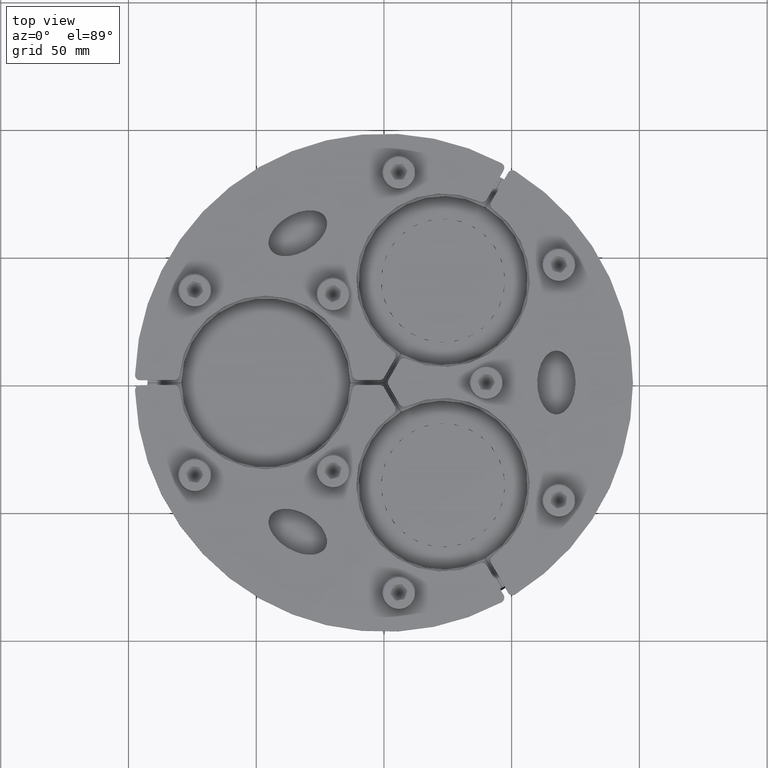
[diagram: clean part render]
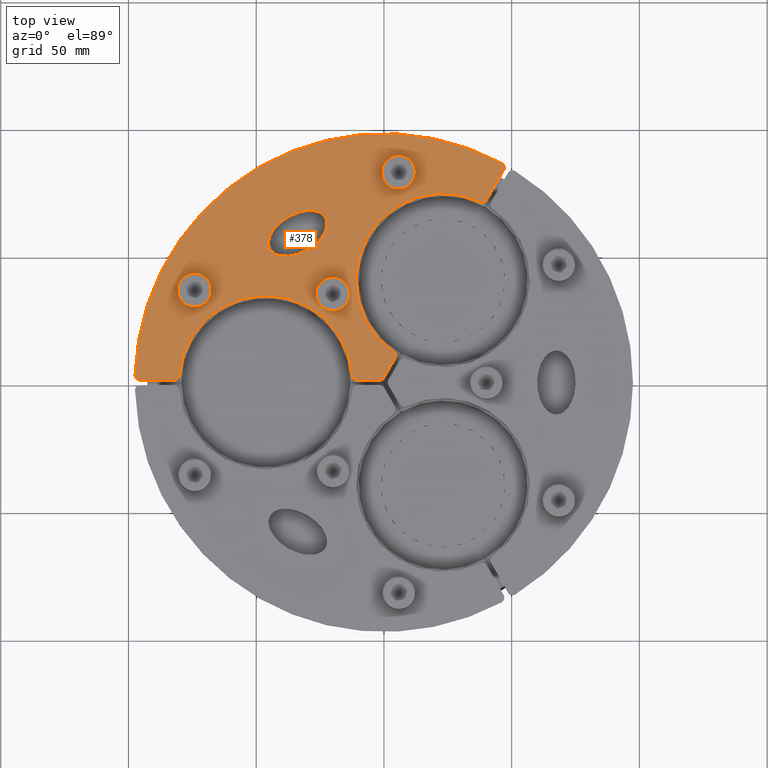
[diagram: same view with one face highlighted and labeled with its STEP entity id]
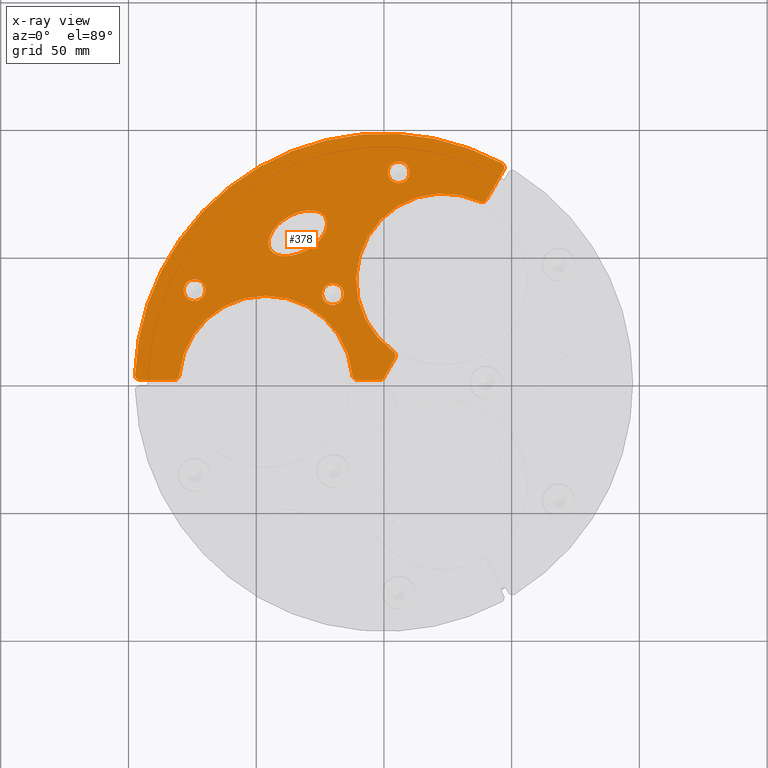
[diagram: x-ray of the same camera — body ghosted, the highlighted face saturated]
A machine part, top view. The second image highlights one B-rep face of the part: STEP entity #378.
The next image is the same camera in x-ray: the body ghosted, the highlighted face saturated — about 0% of this face is hidden behind the body in this view.
In plain terms, the highlighted planar face has unit normal (0, 0, -1).
Its self-contained STEP definition (entity closure, byte-faithful):
#133=CARTESIAN_POINT('',(-22.924682452694558,64.706714755449624,0.0));
#134=VERTEX_POINT('',#133);
#135=CARTESIAN_POINT('',(-33.750000000000028,58.45671475544961,0.0));
#136=DIRECTION('',(0.0,0.0,1.0));
#137=DIRECTION('',(-0.866025403784438,-0.500000000000001,0.0));
#138=AXIS2_PLACEMENT_3D('',#135,#136,#137);
#139=ELLIPSE('',#138,12.499999999999995,7.499999999999998);
#140=EDGE_CURVE('',#134,#134,#139,.T.);
#172=CARTESIAN_POINT('',(46.860408571529447,83.164608509325262,0.0));
#173=VERTEX_POINT('',#172);
#180=CARTESIAN_POINT('',(46.073454261635156,85.927218111614764,0.0));
#181=VERTEX_POINT('',#180);
#182=CARTESIAN_POINT('',(45.12835776396058,84.164608509325234,0.0));
#183=DIRECTION('',(0.0,0.0,1.0));
#184=DIRECTION('',(0.96174091848567,0.273960591527944,0.0));
#185=AXIS2_PLACEMENT_3D('',#182,#183,#184);
#186=CIRCLE('',#185,2.0);
#187=EDGE_CURVE('',#173,#181,#186,.T.);
#204=CARTESIAN_POINT('',(-97.451880892002279,3.062827225130911,0.0));
#205=VERTEX_POINT('',#204);
#206=CARTESIAN_POINT('',(0.0,0.0,0.0));
#207=DIRECTION('',(0.0,0.0,1.0));
#208=DIRECTION('',(0.491091388986829,0.871108057397581,0.0));
#209=AXIS2_PLACEMENT_3D('',#206,#207,#208);
#210=CIRCLE('',#209,97.5);
#211=EDGE_CURVE('',#181,#205,#210,.T.);
#231=CARTESIAN_POINT('',(-26.080791718767877,45.173256358527553,0.0));
#232=DIRECTION('',(0.0,0.0,1.0));
#233=DIRECTION('',(1.0,0.0,0.0));
#234=AXIS2_PLACEMENT_3D('',#231,#232,#233);
#235=PLANE('',#234);
#236=ORIENTED_EDGE('',*,*,#187,.F.);
#237=CARTESIAN_POINT('',(40.19636571086761,71.622147690842283,0.0));
#238=VERTEX_POINT('',#237);
#239=CARTESIAN_POINT('',(40.196365710867617,71.622147690842297,0.0));
#240=DIRECTION('',(0.499999999999999,0.866025403784439,0.0));
#241=VECTOR('',#240,13.328085721323674);
#242=LINE('',#239,#241);
#243=EDGE_CURVE('',#238,#173,#242,.T.);
#244=ORIENTED_EDGE('',*,*,#243,.F.);
#245=CARTESIAN_POINT('',(37.612130742004354,70.812788092741613,0.0));
#246=VERTEX_POINT('',#245);
#247=CARTESIAN_POINT('',(38.464314903298735,72.622147690842283,0.0));
#248=DIRECTION('',(0.0,0.0,1.0));
#249=DIRECTION('',(0.298875839005932,-0.954292006074923,0.0));
#250=AXIS2_PLACEMENT_3D('',#247,#248,#249);
#251=CIRCLE('',#250,2.0);
#252=EDGE_CURVE('',#246,#238,#251,.T.);
#253=ORIENTED_EDGE('',*,*,#252,.F.);
#254=CARTESIAN_POINT('',(3.730391969883773,12.127895090652308,0.0));
#255=VERTEX_POINT('',#254);
#256=CARTESIAN_POINT('',(23.124999999999972,40.0536749250303,0.0));
#257=DIRECTION('',(0.0,0.0,1.0));
#258=DIRECTION('',(-1.0,0.0,0.0));
#259=AXIS2_PLACEMENT_3D('',#256,#257,#258);
#260=CIRCLE('',#259,34.0);
#261=EDGE_CURVE('',#246,#255,#260,.T.);
#262=ORIENTED_EDGE('',*,*,#261,.T.);
#263=CARTESIAN_POINT('',(4.321583481563457,9.485202159218316,0.0));
#264=VERTEX_POINT('',#263);
#265=CARTESIAN_POINT('',(2.589532673994586,10.485202159218311,0.0));
#266=DIRECTION('',(0.0,0.0,1.0));
#267=DIRECTION('',(0.975879039392263,0.218311933880935,0.0));
#268=AXIS2_PLACEMENT_3D('',#265,#266,#267);
#269=CIRCLE('',#268,2.0);
#270=EDGE_CURVE('',#264,#255,#269,.T.);
#271=ORIENTED_EDGE('',*,*,#270,.F.);
#272=CARTESIAN_POINT('',(1.013079E-014,2.000000000000013,0.0));
#273=VERTEX_POINT('',#272);
#274=CARTESIAN_POINT('',(1.021405E-014,2.000000000000013,0.0));
#275=DIRECTION('',(0.499999999999999,0.866025403784439,0.0));
#276=VECTOR('',#275,8.643166963126905);
#277=LINE('',#274,#276);
#278=EDGE_CURVE('',#273,#264,#277,.T.);
#279=ORIENTED_EDGE('',*,*,#278,.F.);
#280=CARTESIAN_POINT('',(-1.732050807568868,1.0,0.0));
#281=VERTEX_POINT('',#280);
#282=CARTESIAN_POINT('',(-1.732050807568859,3.000000000000007,0.0));
#283=DIRECTION('',(0.0,0.0,1.0));
#284=DIRECTION('',(0.499999999999999,-0.86602540378444,0.0));
#285=AXIS2_PLACEMENT_3D('',#282,#283,#284);
#286=CIRCLE('',#285,2.0);
#287=EDGE_CURVE('',#281,#273,#286,.T.);
#288=ORIENTED_EDGE('',*,*,#287,.F.);
#289=CARTESIAN_POINT('',(-10.375217770695802,1.0,0.0));
#290=VERTEX_POINT('',#289);
#291=CARTESIAN_POINT('',(-10.375217770695798,1.0,0.0));
#292=DIRECTION('',(1.0,0.0,0.0));
#293=VECTOR('',#292,8.64316696312693);
#294=LINE('',#291,#293);
#295=EDGE_CURVE('',#290,#281,#294,.T.);
#296=ORIENTED_EDGE('',*,*,#295,.F.);
#297=CARTESIAN_POINT('',(-12.368261227879366,2.833333333333339,0.0));
#298=VERTEX_POINT('',#297);
#299=CARTESIAN_POINT('',(-10.375217770695802,3.000000000000005,0.0));
#300=DIRECTION('',(0.0,0.0,1.0));
#301=DIRECTION('',(-0.677003200386329,-0.735980072193988,0.0));
#302=AXIS2_PLACEMENT_3D('',#299,#300,#301);
#303=CIRCLE('',#302,2.0);
#304=EDGE_CURVE('',#298,#290,#303,.T.);
#305=ORIENTED_EDGE('',*,*,#304,.F.);
#306=CARTESIAN_POINT('',(-80.131738772120627,2.833333333333333,0.0));
#307=VERTEX_POINT('',#306);
#308=CARTESIAN_POINT('',(-46.25,-1.387779E-016,0.0));
#309=DIRECTION('',(0.0,0.0,1.0));
#310=DIRECTION('',(-1.0,0.0,0.0));
#311=AXIS2_PLACEMENT_3D('',#308,#309,#310);
#312=CIRCLE('',#311,34.0);
#313=EDGE_CURVE('',#298,#307,#312,.T.);
#314=ORIENTED_EDGE('',*,*,#313,.T.);
#315=CARTESIAN_POINT('',(-82.124782229304202,1.0,0.0));
#316=VERTEX_POINT('',#315);
#317=CARTESIAN_POINT('',(-82.124782229304202,3.0,0.0));
#318=DIRECTION('',(0.0,0.0,1.0));
#319=DIRECTION('',(0.67700320038633,-0.735980072193987,0.0));
#320=AXIS2_PLACEMENT_3D('',#317,#318,#319);
#321=CIRCLE('',#320,2.0);
#322=EDGE_CURVE('',#316,#307,#321,.T.);
#323=ORIENTED_EDGE('',*,*,#322,.F.);
#324=CARTESIAN_POINT('',(-95.452867950627876,1.0,0.0));
#325=VERTEX_POINT('',#324);
#326=CARTESIAN_POINT('',(-95.452867950627876,1.0,0.0));
#327=DIRECTION('',(1.0,0.0,0.0));
#328=VECTOR('',#327,13.328085721323674);
#329=LINE('',#326,#328);
#330=EDGE_CURVE('',#325,#316,#329,.T.);
#331=ORIENTED_EDGE('',*,*,#330,.F.);
#332=CARTESIAN_POINT('',(-95.452867950627876,3.00000000000002,0.0));
#333=DIRECTION('',(0.0,0.0,1.0));
#334=DIRECTION('',(-0.71812729114184,-0.695911771503603,0.0));
#335=AXIS2_PLACEMENT_3D('',#332,#333,#334);
#336=CIRCLE('',#335,2.0);
#337=EDGE_CURVE('',#205,#325,#336,.T.);
#338=ORIENTED_EDGE('',*,*,#337,.F.);
#339=ORIENTED_EDGE('',*,*,#211,.F.);
#340=EDGE_LOOP('',(#236,#244,#253,#262,#271,#279,#288,#296,#305,#314,#323,#331,#338,#339));
#341=FACE_OUTER_BOUND('',#340,.T.);
#342=ORIENTED_EDGE('',*,*,#140,.T.);
#343=EDGE_LOOP('',(#342));
#344=FACE_BOUND('',#343,.T.);
#345=CARTESIAN_POINT('',(-69.900508819681264,36.165619610098879,0.0));
#346=VERTEX_POINT('',#345);
#347=CARTESIAN_POINT('',(-74.150508819681264,36.165619610098879,0.0));
#348=DIRECTION('',(0.0,0.0,1.0));
#349=DIRECTION('',(-1.0,0.0,0.0));
#350=AXIS2_PLACEMENT_3D('',#347,#348,#349);
#351=CIRCLE('',#350,4.250000000000004);
#352=EDGE_CURVE('',#346,#346,#351,.T.);
#353=ORIENTED_EDGE('',*,*,#352,.T.);
#354=EDGE_LOOP('',(#353));
#355=FACE_BOUND('',#354,.T.);
#356=CARTESIAN_POINT('',(-15.750000000000012,34.641016151377542,0.0));
#357=VERTEX_POINT('',#356);
#358=CARTESIAN_POINT('',(-20.000000000000014,34.641016151377542,0.0));
#359=DIRECTION('',(0.0,0.0,1.0));
#360=DIRECTION('',(-1.0,0.0,0.0));
#361=AXIS2_PLACEMENT_3D('',#358,#359,#360);
#362=CIRCLE('',#361,4.25);
#363=EDGE_CURVE('',#357,#357,#362,.T.);
#364=ORIENTED_EDGE('',*,*,#363,.T.);
#365=EDGE_LOOP('',(#364));
#366=FACE_BOUND('',#365,.T.);
#367=CARTESIAN_POINT('',(10.004909083890341,82.299034146435503,0.0));
#368=VERTEX_POINT('',#367);
#369=CARTESIAN_POINT('',(5.754909083890341,82.299034146435503,0.0));
#370=DIRECTION('',(0.0,0.0,1.0));
#371=DIRECTION('',(-1.0,0.0,0.0));
#372=AXIS2_PLACEMENT_3D('',#369,#370,#371);
#373=CIRCLE('',#372,4.25);
#374=EDGE_CURVE('',#368,#368,#373,.T.);
#375=ORIENTED_EDGE('',*,*,#374,.T.);
#376=EDGE_LOOP('',(#375));
#377=FACE_BOUND('',#376,.T.);
#378=ADVANCED_FACE('',(#341,#344,#355,#366,#377),#235,.F.);